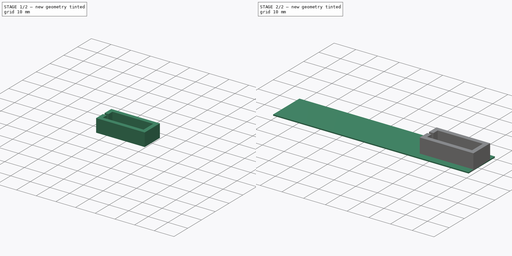
[diagram: build sequence overview — one tinted view per stage of 2, left to right]
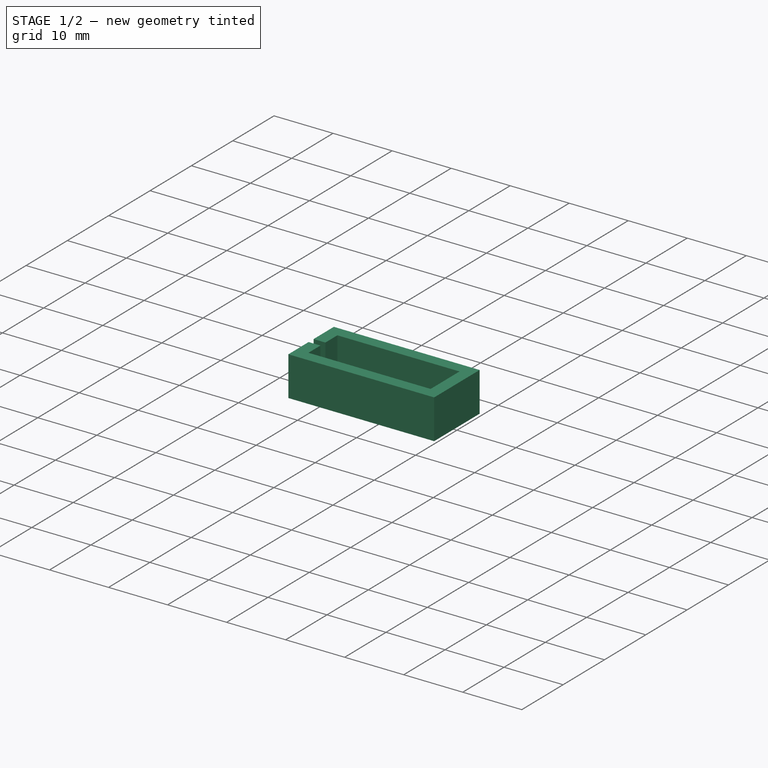
[diagram: stage 1 of 2 — iso view after this stage's code; geometry added in this stage tinted green]
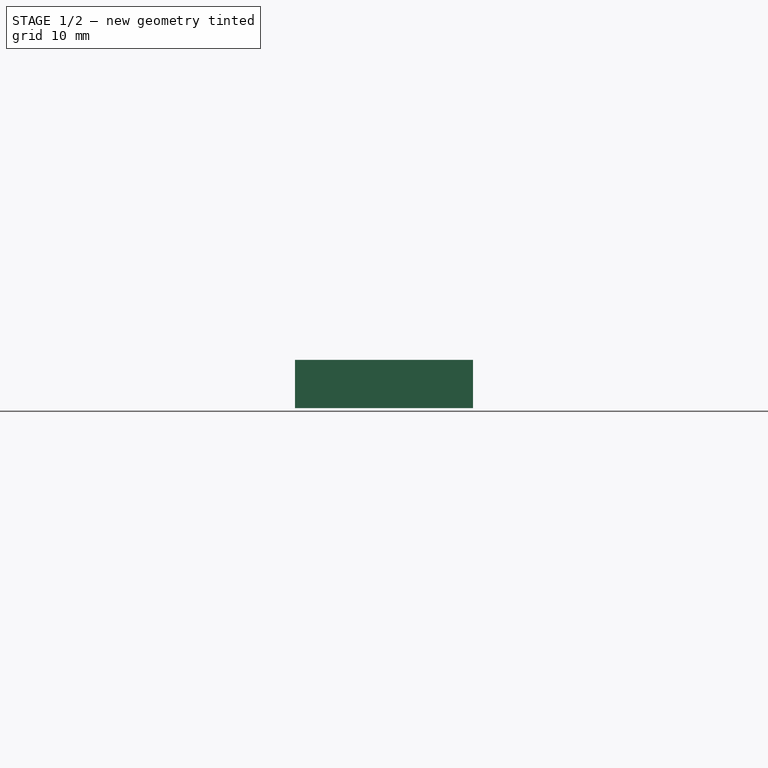
[diagram: stage 1 of 2 — front view after this stage's code; geometry added in this stage tinted green]
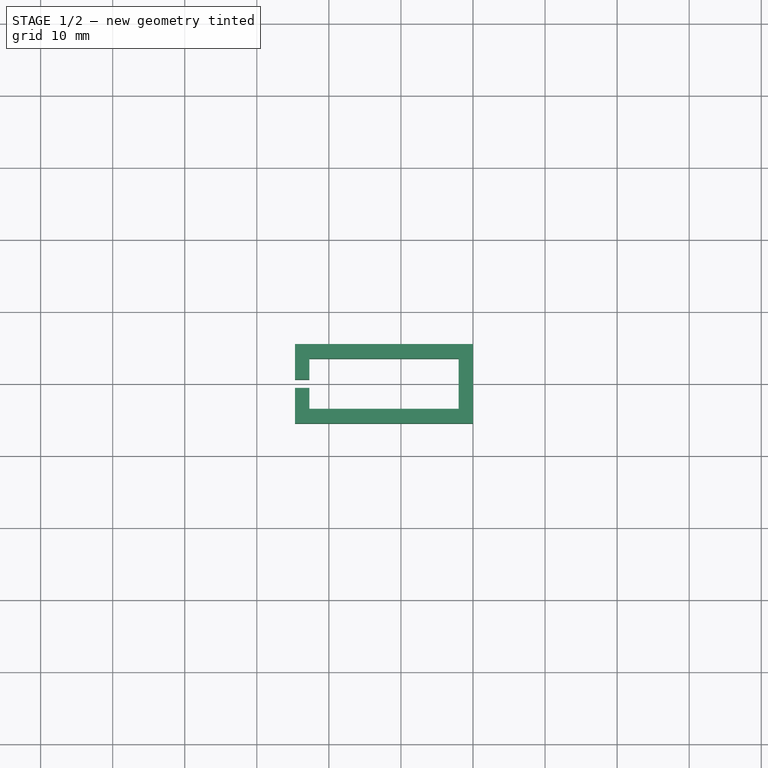
[diagram: stage 1 of 2 — top view after this stage's code; geometry added in this stage tinted green]
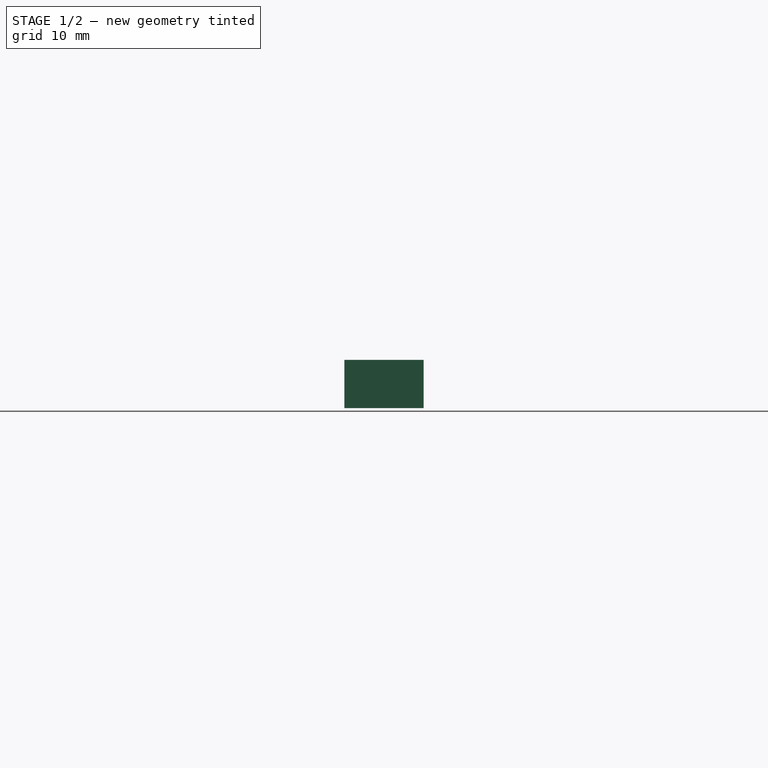
[diagram: stage 1 of 2 — right view after this stage's code; geometry added in this stage tinted green]
FCSTD DOCUMENT  (FreeCAD 0.18R16146 (Git))
Label: gps4
License: All rights reserved
LicenseURL: http://en.wikipedia.org/wiki/All_rights_reserved
objects: Sketcher::SketchObject×2, PartDesign::Pad×2, PartDesign::Body×1
note: 7 computed .brp shape members not serialized (recipe doc carries the construction recipe); baked Part::Feature solids carry a one-line shape summary decoded from their .brp

FEATURE [Sketcher::SketchObject] Sketch001  label="antenna strip"
  MapMode = 5
  Support = -> [XY_Plane]
  sketch-geometry (4):
    g0: LineSegment StartX=-90 StartY=8.65 StartZ=0 EndX=0 EndY=8.65 EndZ=0
    g1: LineSegment StartX=0 StartY=8.65 StartZ=0 EndX=0 EndY=-8.65 EndZ=0
    g2: LineSegment StartX=0 StartY=-8.65 StartZ=0 EndX=-90 EndY=-8.65 EndZ=0
    g3: LineSegment StartX=-90 StartY=-8.65 StartZ=0 EndX=-90 EndY=8.65 EndZ=0
  constraints (11):
    c: Coincident(g0,g1)
    c: Coincident(g1,g2)
    c: Coincident(g2,g3)
    c: Coincident(g3,g0)
    c: Horizontal(g0)
    c: Horizontal(g2)
    c: Vertical(g1)
    c: DistanceX(g0,g0) = 90
    c: DistanceY(g3,g3) = 17.3
    c: Symmetric(g0,g2,g-1)
    c: DistanceX(g-1,g0) = 0
FEATURE [Sketcher::SketchObject] Sketch  label="antenna box"
  MapMode = 2
  Support = -> [Sketch001]
  sketch-geometry (12):
    g0: LineSegment StartX=-22.7 StartY=3.5 StartZ=0 EndX=-2 EndY=3.5 EndZ=0
    g1: LineSegment StartX=-2 StartY=3.5 StartZ=0 EndX=-2 EndY=-3.5 EndZ=0
    g2: LineSegment StartX=-2 StartY=-3.5 StartZ=0 EndX=-22.7 EndY=-3.5 EndZ=0
    g3: LineSegment StartX=-22.7 StartY=0.6 StartZ=0 EndX=-22.7 EndY=3.5 EndZ=0
    g4: LineSegment StartX=-24.7 StartY=5.5 StartZ=0 EndX=0 EndY=5.5 EndZ=0
    g5: LineSegment StartX=0 StartY=5.5 StartZ=0 EndX=0 EndY=-5.5 EndZ=0
    g6: LineSegment StartX=0 StartY=-5.5 StartZ=0 EndX=-24.7 EndY=-5.5 EndZ=0
    g7: LineSegment StartX=-22.7 StartY=-3.5 StartZ=0 EndX=-22.7 EndY=-0.6 EndZ=0
    g8: LineSegment StartX=-24.7 StartY=5.5 StartZ=0 EndX=-24.7 EndY=0.6 EndZ=0
    g9: LineSegment StartX=-24.7 StartY=0.6 StartZ=0 EndX=-22.7 EndY=0.6 EndZ=0
    g10: LineSegment StartX=-24.7 StartY=-0.6 StartZ=0 EndX=-22.7 EndY=-0.6 EndZ=0
    g11: LineSegment StartX=-24.7 StartY=-5.5 StartZ=0 EndX=-24.7 EndY=-0.6 EndZ=0
  constraints (34):
    c: Coincident(g0,g1)
    c: Coincident(g1,g2)
    c: Coincident(g3,g0)
    c: Horizontal(g0)
    c: Horizontal(g2)
    c: Vertical(g3)
    c: Coincident(g4,g5)
    c: Coincident(g5,g6)
    c: Horizontal(g4)
    c: Horizontal(g6)
    c: Vertical(g5)
    c: DistanceY(g0,g4) = 2
    c: DistanceX(g4,g0) = 2
    c: Coincident(g7,g2)
    c: Vertical(g7)
    c: Coincident(g8,g4)
    c: Vertical(g8)
    c: Coincident(g9,g8)
    c: Coincident(g9,g3)
    c: Horizontal(g9)
    c: Coincident(g10,g7)
    c: Horizontal(g10)
    c: DistanceX(g10,g10) = 2
    c: Symmetric(g3,g7,g-1)
    c: Coincident(g11,g6)
    c: Coincident(g11,g10)
    c: Vertical(g11)
    c: DistanceX(g4,g-1) = 0
    c: DistanceX(g0,g0) = 20.7
    c: Symmetric(g0,g1,g-1)
    c: DistanceX(g0,g4) = 2
    c: DistanceY(g5,g1) = 2
    c: DistanceY(g1,g0) = 7
    c: DistanceY(g10,g8) = 1.2
FEATURE [PartDesign::Pad] Pad
  Length = 6.7
  Length2 = 100
  Profile = -> Sketch
  Type = 0
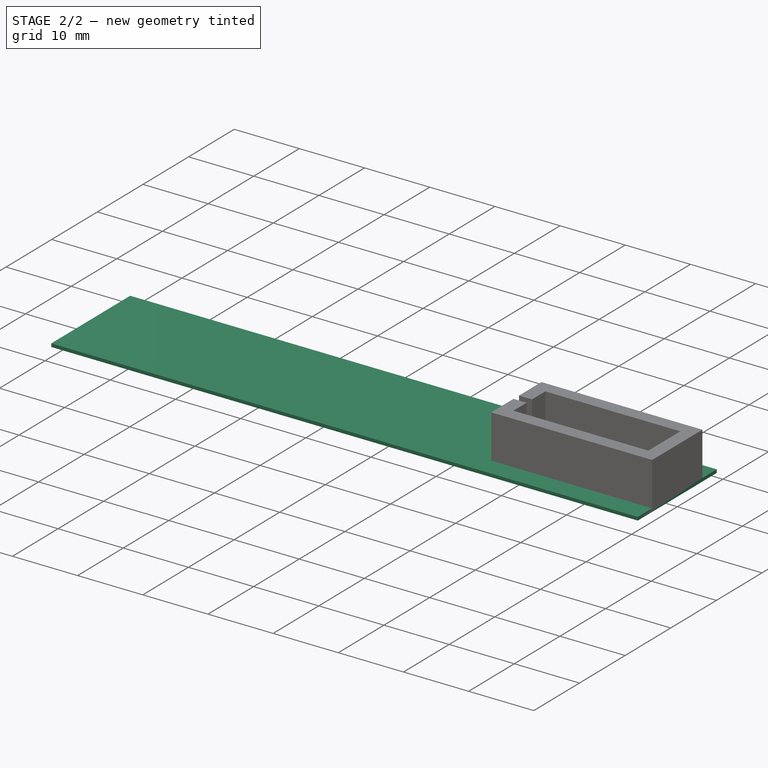
[diagram: stage 2 of 2 — iso view after this stage's code; geometry added in this stage tinted green]
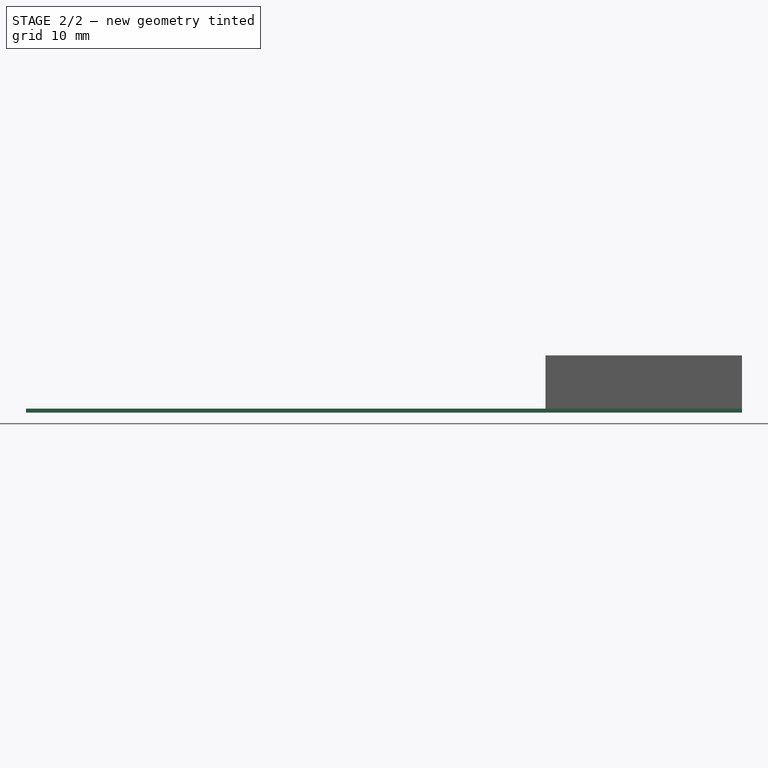
[diagram: stage 2 of 2 — front view after this stage's code; geometry added in this stage tinted green]
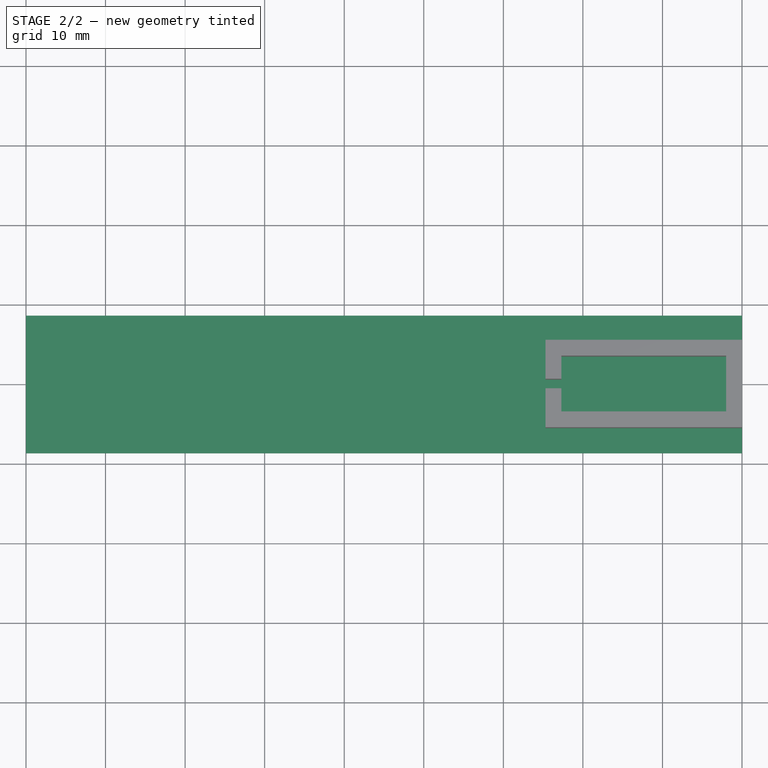
[diagram: stage 2 of 2 — top view after this stage's code; geometry added in this stage tinted green]
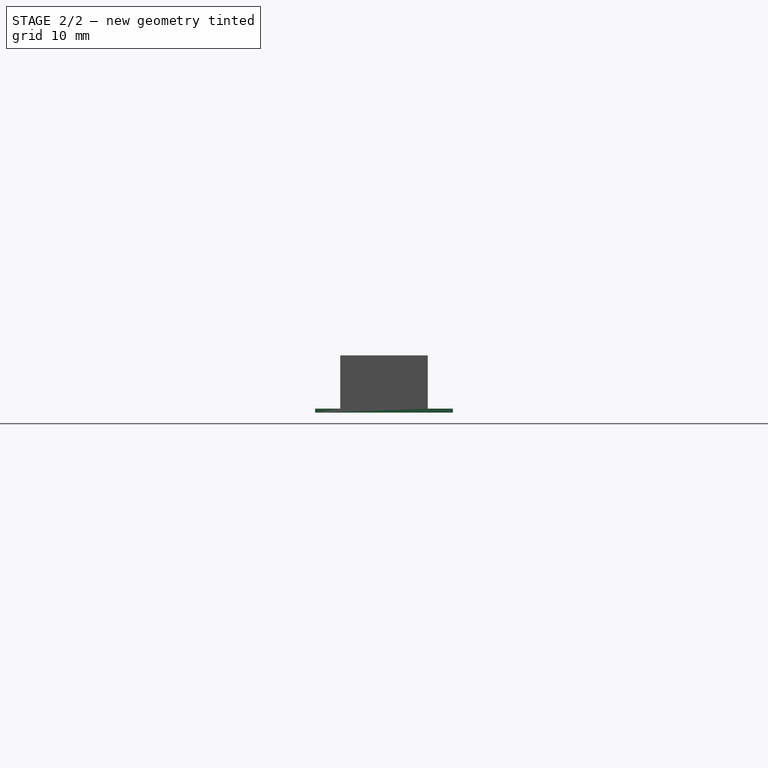
[diagram: stage 2 of 2 — right view after this stage's code; geometry added in this stage tinted green]
FEATURE [PartDesign::Pad] Pad001
  BaseFeature = -> Pad
  Length = 0.5
  Length2 = 100
  Profile = -> Sketch001
  Reversed = true
  Type = 0
FEATURE [PartDesign::Body] Body
  Group = -> [Sketch,Pad,Sketch001,Pad001]
  Origin = -> Origin
  Tip = -> Pad001
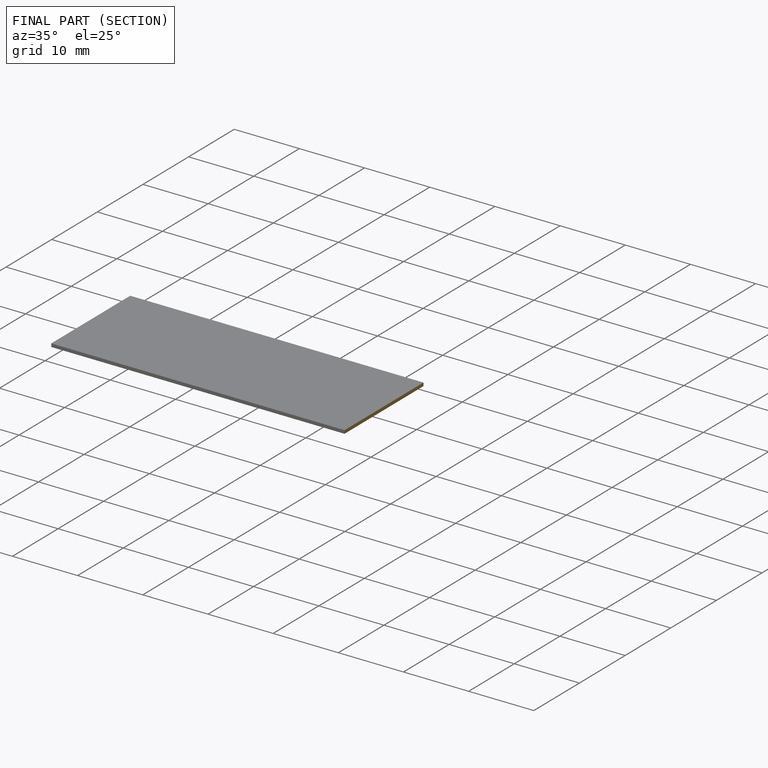
[diagram: finished part — half-section view (interior)]
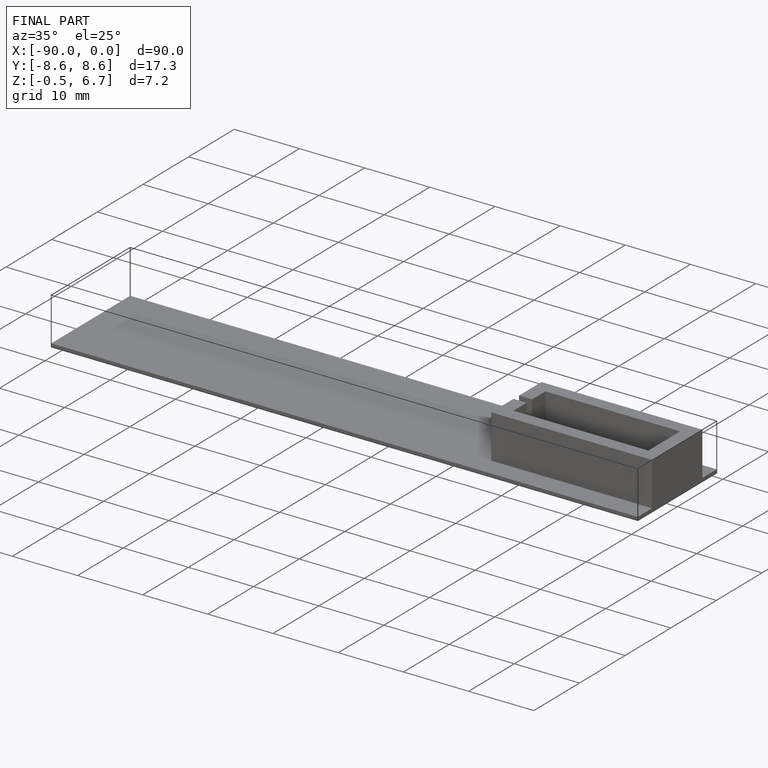
[diagram: finished part — iso view with bounding-box wireframe]
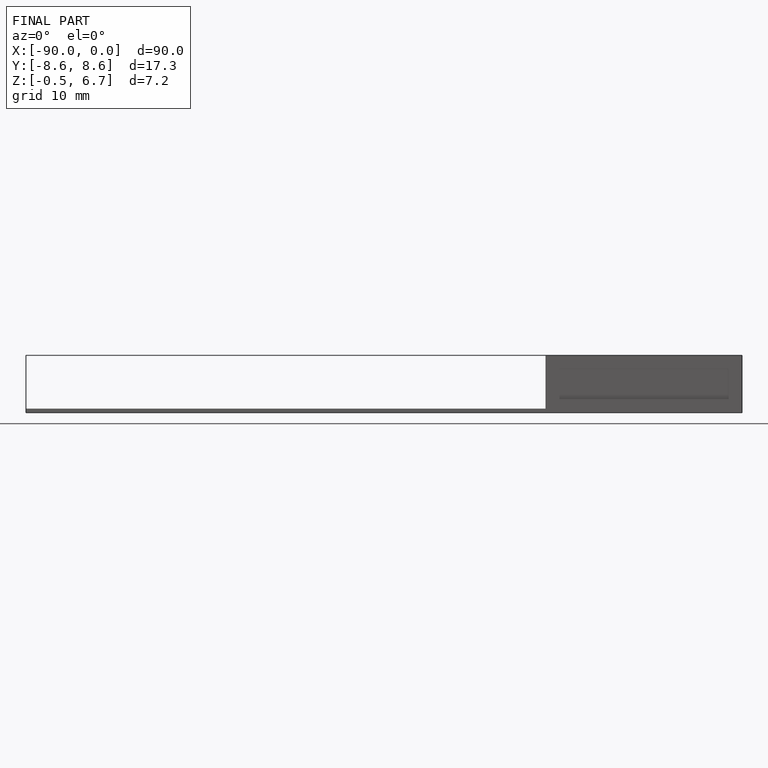
[diagram: finished part — front view with bounding-box wireframe]
